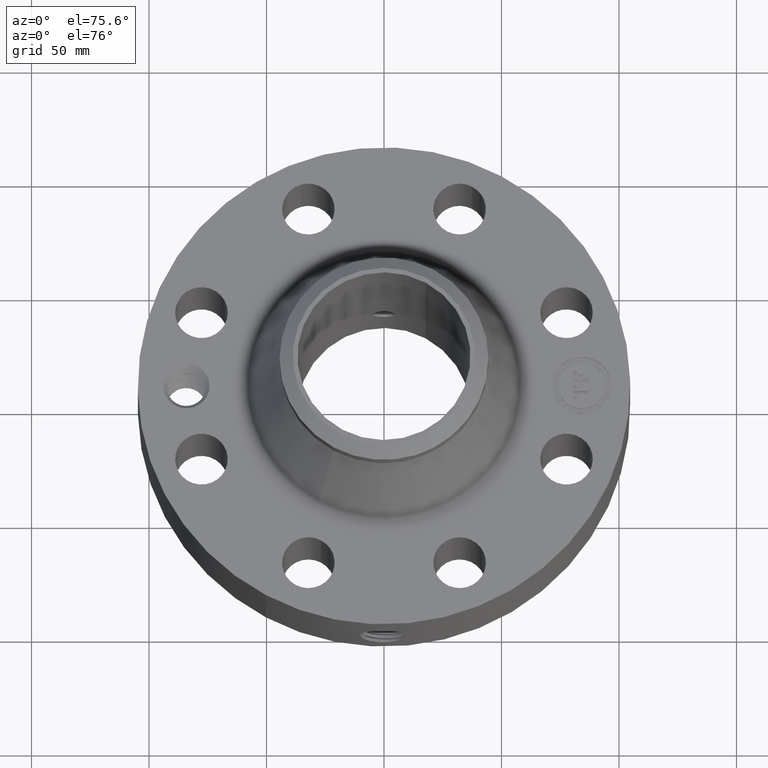
[diagram: clean part render]
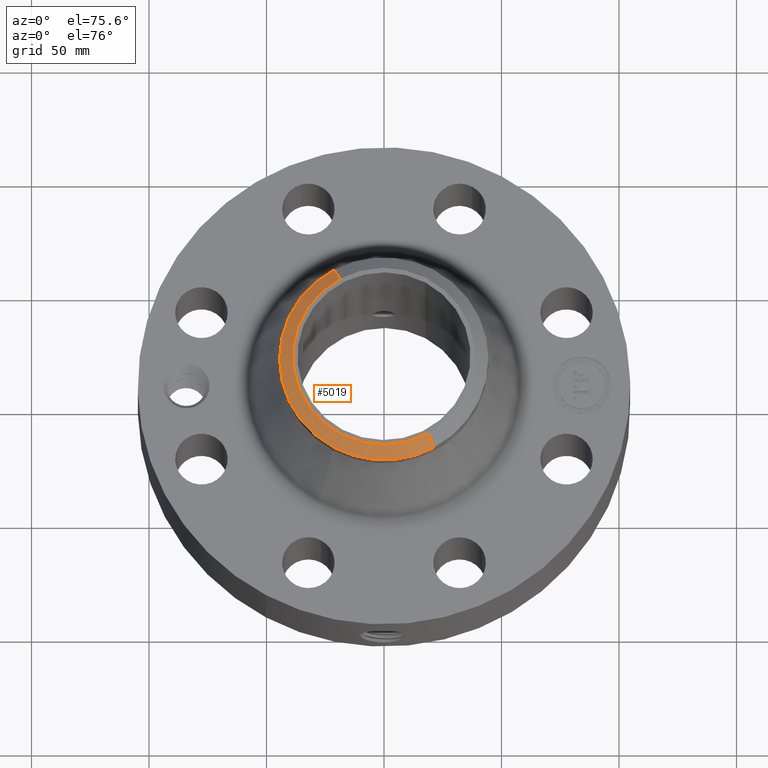
[diagram: same view with one face highlighted and labeled with its STEP entity id]
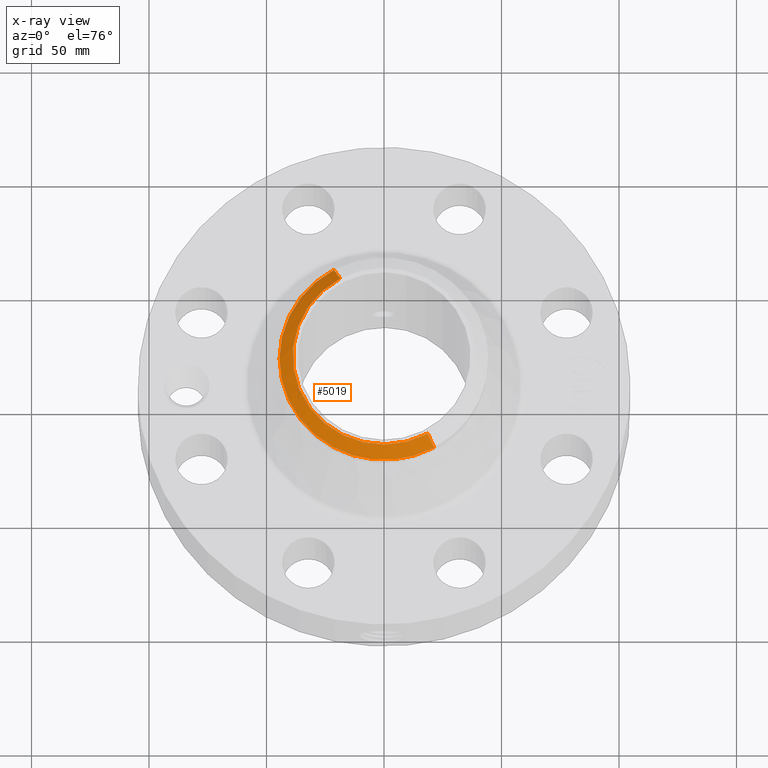
[diagram: x-ray of the same camera — body ghosted, the highlighted face saturated]
A machine part, auxiliary view. The second image highlights one B-rep face of the part: STEP entity #5019.
The next image is the same camera in x-ray: the body ghosted, the highlighted face saturated — about 0% of this face is hidden behind the body in this view.
In plain terms, the highlighted conical surface has half-angle 52.5 deg.
Its self-contained STEP definition (entity closure, byte-faithful):
#3738=AXIS2_PLACEMENT_3D('Circle Axis2P3D',#3736,#3737,$) ;
#3751=AXIS2_PLACEMENT_3D('Circle Axis2P3D',#3749,#3750,$) ;
#4593=AXIS2_PLACEMENT_3D('Circle Axis2P3D',#4591,#4592,$) ;
#4992=AXIS2_PLACEMENT_3D('Cone Axis2P3D',#4989,#4990,#4991) ;
#3719=CARTESIAN_POINT('Vertex',(-0.838994692561,-1.53576948331,3.58022135149)) ;
#3733=CARTESIAN_POINT('Vertex',(0.838994692561,-1.53576948331,3.58022135149)) ;
#3736=CARTESIAN_POINT('Axis2P3D Location',(0.,0.,3.58022135149)) ;
#3749=CARTESIAN_POINT('Axis2P3D Location',(0.,0.,3.58022135149)) ;
#3753=CARTESIAN_POINT('Vertex',(-0.838994692561,1.53576948331,3.58022135149)) ;
#4586=CARTESIAN_POINT('Vertex',(0.732917073389,-1.34159570387,3.75000000002)) ;
#4588=CARTESIAN_POINT('Vertex',(-0.732917073389,1.34159570387,3.75000000002)) ;
#4591=CARTESIAN_POINT('Axis2P3D Location',(0.,0.,3.75000000002)) ;
#4989=CARTESIAN_POINT('Axis2P3D Location',(0.,0.,3.75000000002)) ;
#4994=CARTESIAN_POINT('Line Origine',(-0.785955882975,1.43868259359,3.66511067575)) ;
#4999=CARTESIAN_POINT('Line Origine',(0.785955882975,-1.43868259359,3.66511067575)) ;
#3737=DIRECTION('Axis2P3D Direction',(0.,0.,-0.0393700787402)) ;
#3750=DIRECTION('Axis2P3D Direction',(0.,0.,-0.0393700787402)) ;
#4592=DIRECTION('Axis2P3D Direction',(0.,0.,-0.0393700787402)) ;
#4990=DIRECTION('Axis2P3D Direction',(-0.,-0.,-0.0393700787402)) ;
#4991=DIRECTION('Axis2P3D XDirection',(0.0188750212049,-0.0345504945626,0.)) ;
#4995=DIRECTION('Vector Direction',(-0.014974561121,0.02741075027,-0.023966985394)) ;
#5000=DIRECTION('Vector Direction',(0.014974561121,-0.02741075027,-0.023966985394)) ;
#4996=VECTOR('Line Direction',#4995,0.0393700787402) ;
#5001=VECTOR('Line Direction',#5000,0.0393700787402) ;
#5013=ORIENTED_EDGE('',*,*,#5003,.F.) ;
#5014=ORIENTED_EDGE('',*,*,#4595,.F.) ;
#5015=ORIENTED_EDGE('',*,*,#4998,.T.) ;
#5016=ORIENTED_EDGE('',*,*,#3755,.T.) ;
#5017=ORIENTED_EDGE('',*,*,#3740,.F.) ;
#5019=ADVANCED_FACE('PartBody',(#5018),#4993,.T.) ;
#3739=CIRCLE('generated circle',#3738,1.75000000001) ;
#3752=CIRCLE('generated circle',#3751,1.75000000001) ;
#4594=CIRCLE('generated circle',#4593,1.52874015749) ;
#4993=CONICAL_SURFACE('Cone',#4992,1.52874015749,0.916297857297) ;
#3740=EDGE_CURVE('',#3734,#3720,#3739,.T.) ;
#3755=EDGE_CURVE('',#3754,#3720,#3752,.F.) ;
#4595=EDGE_CURVE('',#4589,#4587,#4594,.F.) ;
#4998=EDGE_CURVE('',#4589,#3754,#4997,.T.) ;
#5003=EDGE_CURVE('',#4587,#3734,#5002,.T.) ;
#5012=EDGE_LOOP('',(#5013,#5014,#5015,#5016,#5017)) ;
#5018=FACE_OUTER_BOUND('',#5012,.T.) ;
#4997=LINE('Line',#4994,#4996) ;
#5002=LINE('Line',#4999,#5001) ;
#3720=VERTEX_POINT('',#3719) ;
#3734=VERTEX_POINT('',#3733) ;
#3754=VERTEX_POINT('',#3753) ;
#4587=VERTEX_POINT('',#4586) ;
#4589=VERTEX_POINT('',#4588) ;